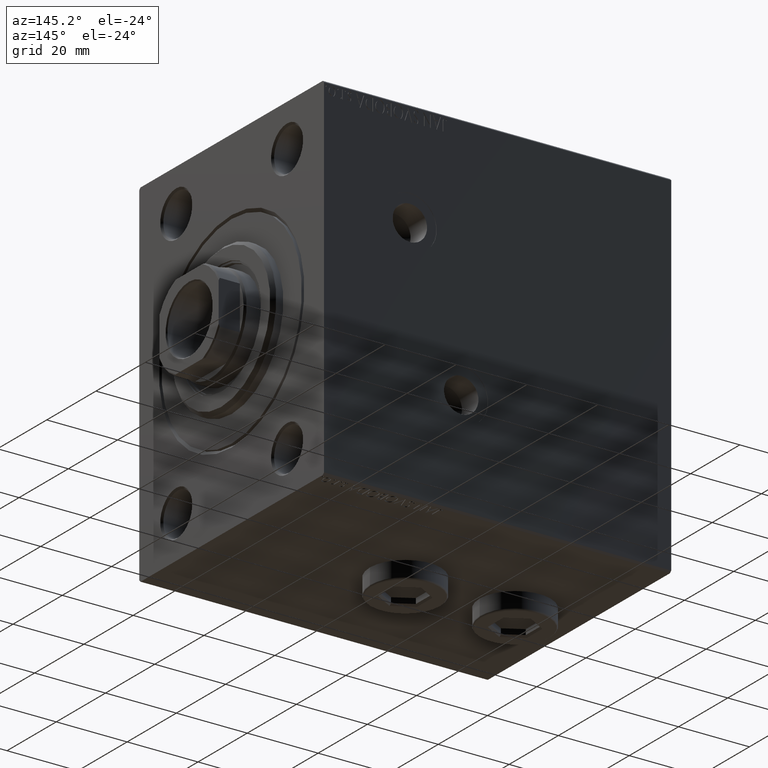
[diagram: clean part render]
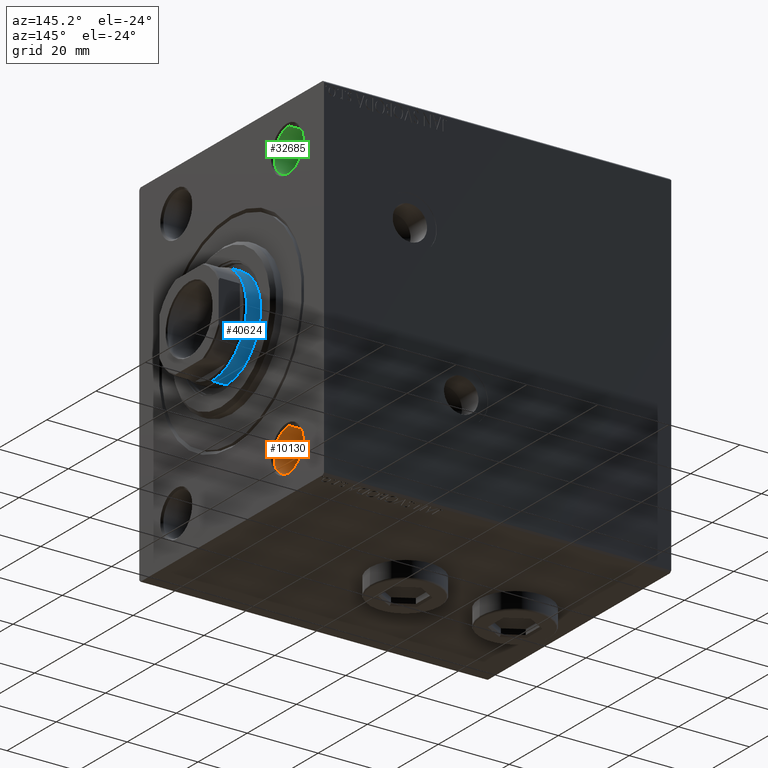
[diagram: same view with three faces highlighted in distinct colors, each labeled with its STEP entity id]
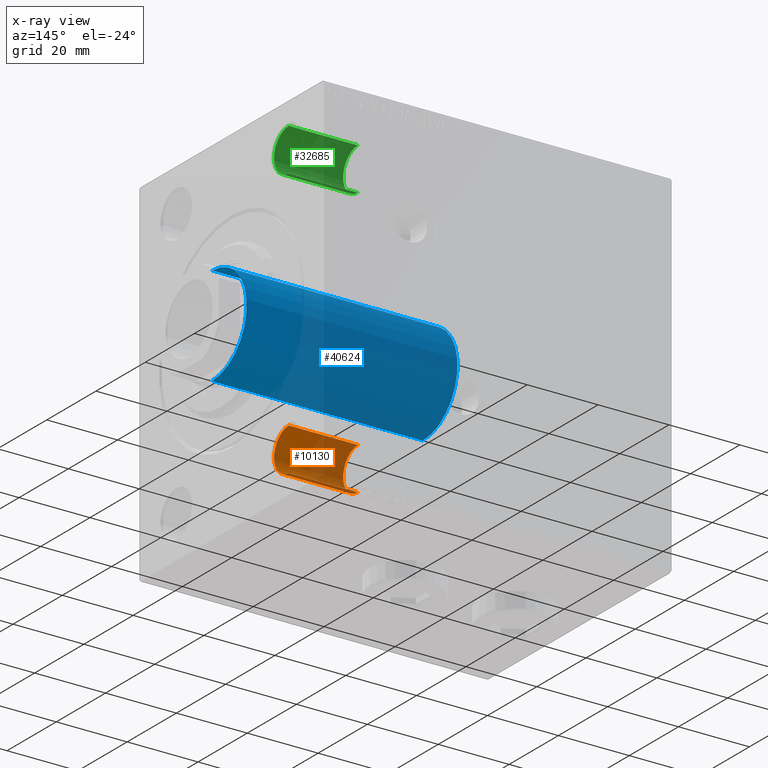
[diagram: x-ray of the same camera — body ghosted, the three highlighted faces saturated]
A machine part, auxiliary view with three faces highlighted in distinct colors.
The next image is the same camera in x-ray (body ghosted, the three faces saturated) — at least one of them is partly hidden behind the body in this view.
Their STEP definitions:

[orange] entity #10130 — the highlighted cylindrical surface (edge-blend (fillet) strip) has radius 6 mm, axis along (1, 0, 0).
#1167 = LINE ( 'NONE', #11712, #21083 ) ;
#1763 = AXIS2_PLACEMENT_3D ( 'NONE', #40777, #35109, #13819 ) ;
#3473 = CIRCLE ( 'NONE', #6489, 5.999999999999998224 ) ;
#4718 = CARTESIAN_POINT ( 'NONE',  ( 0.4999999999999882871, 22.49999999999999289, 44.00000000000000000 ) ) ;
#4939 = LINE ( 'NONE', #37705, #36904 ) ;
#6489 = AXIS2_PLACEMENT_3D ( 'NONE', #19977, #41712, #13178 ) ;
#10130 = ADVANCED_FACE ( 'NONE', ( #38394 ), #13586, .F. ) ;
#11012 = CARTESIAN_POINT ( 'NONE',  ( 20.00000000000000000, 22.49999999999999289, 44.00000000000000000 ) ) ;
#11609 = VERTEX_POINT ( 'NONE', #40846 ) ;
#11712 = CARTESIAN_POINT ( 'NONE',  ( 0.000000000000000000, 22.49999999999999289, 32.00000000000000000 ) ) ;
#13178 = DIRECTION ( 'NONE',  ( 0.000000000000000000, 0.000000000000000000, -1.000000000000000000 ) ) ;
#13439 = ORIENTED_EDGE ( 'NONE', *, *, #17836, .F. ) ;
#13586 = CYLINDRICAL_SURFACE ( 'NONE', #1763, 5.999999999999998224 ) ;
#13819 = DIRECTION ( 'NONE',  ( 0.000000000000000000, 0.000000000000000000, 1.000000000000000000 ) ) ;
#15920 = CARTESIAN_POINT ( 'NONE',  ( 20.00000000000000000, 22.49999999999999289, 32.00000000000000000 ) ) ;
#17836 = EDGE_CURVE ( 'NONE', #26040, #25927, #4939, .T. ) ;
#19977 = CARTESIAN_POINT ( 'NONE',  ( 0.4999999999999882871, 22.49999999999999289, 38.00000000000000000 ) ) ;
#21083 = VECTOR ( 'NONE', #29489, 1000.000000000000000 ) ;
#21843 = ORIENTED_EDGE ( 'NONE', *, *, #46106, .T. ) ;
#24650 = AXIS2_PLACEMENT_3D ( 'NONE', #27355, #34841, #45822 ) ;
#24692 = EDGE_CURVE ( 'NONE', #11609, #25927, #3473, .T. ) ;
#25927 = VERTEX_POINT ( 'NONE', #4718 ) ;
#26040 = VERTEX_POINT ( 'NONE', #11012 ) ;
#27355 = CARTESIAN_POINT ( 'NONE',  ( 20.00000000000000000, 22.49999999999999289, 38.00000000000000000 ) ) ;
#29489 = DIRECTION ( 'NONE',  ( -1.000000000000000000, -0.000000000000000000, -0.000000000000000000 ) ) ;
#34841 = DIRECTION ( 'NONE',  ( -1.000000000000000000, -0.000000000000000000, -0.000000000000000000 ) ) ;
#35109 = DIRECTION ( 'NONE',  ( -1.000000000000000000, -0.000000000000000000, -0.000000000000000000 ) ) ;
#36904 = VECTOR ( 'NONE', #44478, 1000.000000000000000 ) ;
#37143 = EDGE_CURVE ( 'NONE', #46176, #26040, #44026, .T. ) ;
#37705 = CARTESIAN_POINT ( 'NONE',  ( 0.000000000000000000, 22.49999999999999289, 44.00000000000000000 ) ) ;
#38183 = ORIENTED_EDGE ( 'NONE', *, *, #24692, .T. ) ;
#38394 = FACE_OUTER_BOUND ( 'NONE', #41988, .T. ) ;
#39606 = ORIENTED_EDGE ( 'NONE', *, *, #37143, .F. ) ;
#40777 = CARTESIAN_POINT ( 'NONE',  ( 0.000000000000000000, 22.49999999999999289, 38.00000000000000000 ) ) ;
#40846 = CARTESIAN_POINT ( 'NONE',  ( 0.4999999999999882871, 22.49999999999999289, 32.00000000000000000 ) ) ;
#41712 = DIRECTION ( 'NONE',  ( -1.000000000000000000, 0.000000000000000000, 0.000000000000000000 ) ) ;
#41988 = EDGE_LOOP ( 'NONE', ( #39606, #21843, #38183, #13439 ) ) ;
#44026 = CIRCLE ( 'NONE', #24650, 5.999999999999998224 ) ;
#44478 = DIRECTION ( 'NONE',  ( -1.000000000000000000, -0.000000000000000000, -0.000000000000000000 ) ) ;
#45822 = DIRECTION ( 'NONE',  ( 0.000000000000000000, 0.000000000000000000, 1.000000000000000000 ) ) ;
#46106 = EDGE_CURVE ( 'NONE', #46176, #11609, #1167, .T. ) ;
#46176 = VERTEX_POINT ( 'NONE', #15920 ) ;

[blue] entity #40624 — the highlighted cylindrical surface (partial cylindrical patch) has radius 14 mm, axis along (-1, -0, 0).
#687 = CARTESIAN_POINT ( 'NONE',  ( 14.00000000000000000, 1.714505518806294638E-15, 90.00000000000000000 ) ) ;
#2609 = DIRECTION ( 'NONE',  ( -0.000000000000000000, -0.000000000000000000, -1.000000000000000000 ) ) ;
#3064 = CARTESIAN_POINT ( 'NONE',  ( 0.000000000000000000, 0.000000000000000000, 90.00000000000000000 ) ) ;
#4251 = CARTESIAN_POINT ( 'NONE',  ( -14.00000000000000000, 0.000000000000000000, 89.49999999999997158 ) ) ;
#4309 = CARTESIAN_POINT ( 'NONE',  ( 14.00000000000000000, 1.714505518806294638E-15, 89.49999999999997158 ) ) ;
#6552 = CIRCLE ( 'NONE', #33424, 14.00000000000000000 ) ;
#6653 = VERTEX_POINT ( 'NONE', #35943 ) ;
#6800 = CYLINDRICAL_SURFACE ( 'NONE', #13533, 14.00000000000000000 ) ;
#11151 = EDGE_LOOP ( 'NONE', ( #21043, #34386, #14984, #43980 ) ) ;
#11849 = DIRECTION ( 'NONE',  ( 0.000000000000000000, 0.000000000000000000, -1.000000000000000000 ) ) ;
#12326 = DIRECTION ( 'NONE',  ( 1.000000000000000000, 0.000000000000000000, 0.000000000000000000 ) ) ;
#13533 = AXIS2_PLACEMENT_3D ( 'NONE', #3064, #2609, #35125 ) ;
#14976 = DIRECTION ( 'NONE',  ( -0.000000000000000000, -0.000000000000000000, -1.000000000000000000 ) ) ;
#14984 = ORIENTED_EDGE ( 'NONE', *, *, #31509, .T. ) ;
#15027 = VECTOR ( 'NONE', #14976, 1000.000000000000000 ) ;
#16869 = VERTEX_POINT ( 'NONE', #22161 ) ;
#19360 = CARTESIAN_POINT ( 'NONE',  ( 0.000000000000000000, 0.000000000000000000, 30.00000000000000000 ) ) ;
#21043 = ORIENTED_EDGE ( 'NONE', *, *, #38904, .T. ) ;
#21151 = LINE ( 'NONE', #38911, #37198 ) ;
#22161 = CARTESIAN_POINT ( 'NONE',  ( 14.00000000000000000, 1.714505518806294638E-15, 30.00000000000000000 ) ) ;
#26115 = DIRECTION ( 'NONE',  ( 1.000000000000000000, 0.000000000000000000, 0.000000000000000000 ) ) ;
#27876 = FACE_OUTER_BOUND ( 'NONE', #11151, .T. ) ;
#31401 = CIRCLE ( 'NONE', #41096, 14.00000000000000000 ) ;
#31509 = EDGE_CURVE ( 'NONE', #16869, #6653, #6552, .T. ) ;
#31981 = EDGE_CURVE ( 'NONE', #42450, #6653, #21151, .T. ) ;
#33365 = CARTESIAN_POINT ( 'NONE',  ( 0.000000000000000000, 0.000000000000000000, 89.49999999999997158 ) ) ;
#33424 = AXIS2_PLACEMENT_3D ( 'NONE', #19360, #33611, #12326 ) ;
#33611 = DIRECTION ( 'NONE',  ( 0.000000000000000000, 0.000000000000000000, 1.000000000000000000 ) ) ;
#34386 = ORIENTED_EDGE ( 'NONE', *, *, #40681, .T. ) ;
#34966 = DIRECTION ( 'NONE',  ( -0.000000000000000000, -0.000000000000000000, -1.000000000000000000 ) ) ;
#35125 = DIRECTION ( 'NONE',  ( -1.000000000000000000, 0.000000000000000000, 0.000000000000000000 ) ) ;
#35133 = VERTEX_POINT ( 'NONE', #4309 ) ;
#35943 = CARTESIAN_POINT ( 'NONE',  ( -14.00000000000000000, 0.000000000000000000, 30.00000000000000000 ) ) ;
#37198 = VECTOR ( 'NONE', #34966, 1000.000000000000000 ) ;
#38904 = EDGE_CURVE ( 'NONE', #42450, #35133, #31401, .T. ) ;
#38911 = CARTESIAN_POINT ( 'NONE',  ( -14.00000000000000000, 0.000000000000000000, 90.00000000000000000 ) ) ;
#40624 = ADVANCED_FACE ( 'NONE', ( #27876 ), #6800, .T. ) ;
#40681 = EDGE_CURVE ( 'NONE', #35133, #16869, #46319, .T. ) ;
#41096 = AXIS2_PLACEMENT_3D ( 'NONE', #33365, #11849, #26115 ) ;
#42450 = VERTEX_POINT ( 'NONE', #4251 ) ;
#43980 = ORIENTED_EDGE ( 'NONE', *, *, #31981, .F. ) ;
#46319 = LINE ( 'NONE', #687, #15027 ) ;

[green] entity #32685 — the highlighted cylindrical surface (edge-blend (fillet) strip) has radius 6 mm, axis along (1, 0, 0).
#1390 = CIRCLE ( 'NONE', #39477, 5.999999999999998224 ) ;
#1749 = VERTEX_POINT ( 'NONE', #13831 ) ;
#2915 = VERTEX_POINT ( 'NONE', #10326 ) ;
#3232 = DIRECTION ( 'NONE',  ( -1.000000000000000000, -0.000000000000000000, -0.000000000000000000 ) ) ;
#4564 = EDGE_LOOP ( 'NONE', ( #39904, #6542, #42100, #10638 ) ) ;
#5556 = DIRECTION ( 'NONE',  ( -1.000000000000000000, 0.000000000000000000, 0.000000000000000000 ) ) ;
#6542 = ORIENTED_EDGE ( 'NONE', *, *, #10755, .T. ) ;
#8189 = DIRECTION ( 'NONE',  ( 0.000000000000000000, 0.000000000000000000, 1.000000000000000000 ) ) ;
#9469 = FACE_OUTER_BOUND ( 'NONE', #4564, .T. ) ;
#9740 = DIRECTION ( 'NONE',  ( -1.000000000000000000, -0.000000000000000000, -0.000000000000000000 ) ) ;
#10326 = CARTESIAN_POINT ( 'NONE',  ( 20.00000000000000000, 22.49999999999999289, -32.00000000000000000 ) ) ;
#10638 = ORIENTED_EDGE ( 'NONE', *, *, #35501, .F. ) ;
#10755 = EDGE_CURVE ( 'NONE', #13630, #1749, #27513, .T. ) ;
#11934 = CARTESIAN_POINT ( 'NONE',  ( 20.00000000000000000, 22.49999999999999289, -38.00000000000000000 ) ) ;
#13630 = VERTEX_POINT ( 'NONE', #17853 ) ;
#13831 = CARTESIAN_POINT ( 'NONE',  ( 0.4999999999999882871, 22.49999999999999289, -44.00000000000000000 ) ) ;
#16411 = VECTOR ( 'NONE', #3232, 1000.000000000000000 ) ;
#16971 = CARTESIAN_POINT ( 'NONE',  ( 0.000000000000000000, 22.49999999999999289, -38.00000000000000000 ) ) ;
#17853 = CARTESIAN_POINT ( 'NONE',  ( 20.00000000000000000, 22.49999999999999289, -44.00000000000000000 ) ) ;
#20348 = CARTESIAN_POINT ( 'NONE',  ( 0.000000000000000000, 22.49999999999999289, -32.00000000000000000 ) ) ;
#25976 = AXIS2_PLACEMENT_3D ( 'NONE', #16971, #30762, #34737 ) ;
#26267 = CIRCLE ( 'NONE', #33750, 5.999999999999998224 ) ;
#27513 = LINE ( 'NONE', #42011, #32393 ) ;
#27559 = DIRECTION ( 'NONE',  ( 0.000000000000000000, 0.000000000000000000, -1.000000000000000000 ) ) ;
#29473 = EDGE_CURVE ( 'NONE', #1749, #43565, #1390, .T. ) ;
#30762 = DIRECTION ( 'NONE',  ( -1.000000000000000000, -0.000000000000000000, -0.000000000000000000 ) ) ;
#32393 = VECTOR ( 'NONE', #9740, 1000.000000000000000 ) ;
#32685 = ADVANCED_FACE ( 'NONE', ( #9469 ), #41981, .F. ) ;
#33671 = CARTESIAN_POINT ( 'NONE',  ( 0.4999999999999882871, 22.49999999999999289, -32.00000000000000000 ) ) ;
#33750 = AXIS2_PLACEMENT_3D ( 'NONE', #11934, #40237, #8189 ) ;
#34359 = LINE ( 'NONE', #20348, #16411 ) ;
#34737 = DIRECTION ( 'NONE',  ( 0.000000000000000000, 0.000000000000000000, 1.000000000000000000 ) ) ;
#35501 = EDGE_CURVE ( 'NONE', #2915, #43565, #34359, .T. ) ;
#38551 = CARTESIAN_POINT ( 'NONE',  ( 0.4999999999999882871, 22.49999999999999289, -38.00000000000000000 ) ) ;
#39477 = AXIS2_PLACEMENT_3D ( 'NONE', #38551, #5556, #27559 ) ;
#39904 = ORIENTED_EDGE ( 'NONE', *, *, #46128, .F. ) ;
#40237 = DIRECTION ( 'NONE',  ( -1.000000000000000000, -0.000000000000000000, -0.000000000000000000 ) ) ;
#41981 = CYLINDRICAL_SURFACE ( 'NONE', #25976, 5.999999999999998224 ) ;
#42011 = CARTESIAN_POINT ( 'NONE',  ( 0.000000000000000000, 22.49999999999999289, -44.00000000000000000 ) ) ;
#42100 = ORIENTED_EDGE ( 'NONE', *, *, #29473, .T. ) ;
#43565 = VERTEX_POINT ( 'NONE', #33671 ) ;
#46128 = EDGE_CURVE ( 'NONE', #13630, #2915, #26267, .T. ) ;